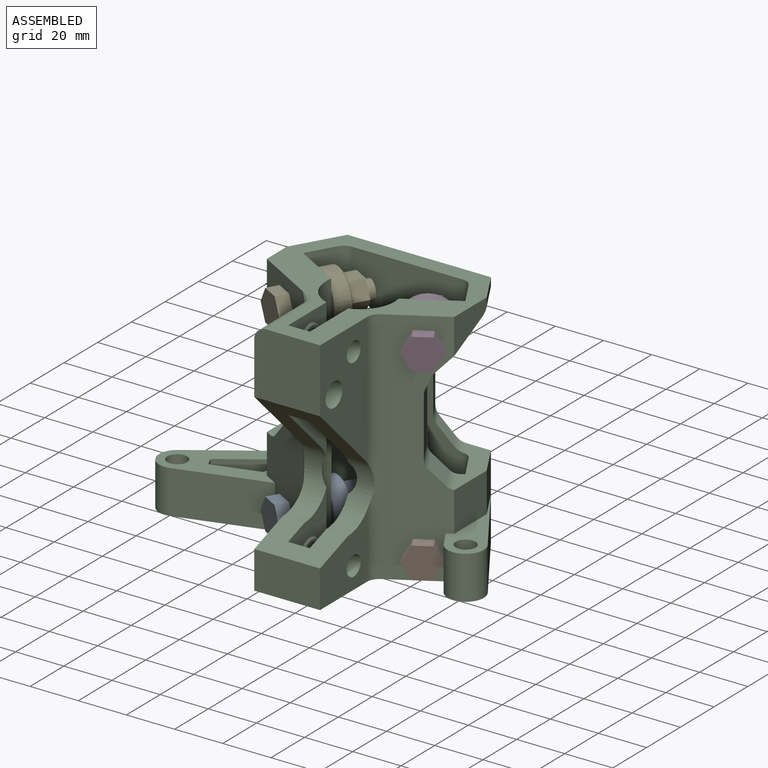
[diagram: assembled view]
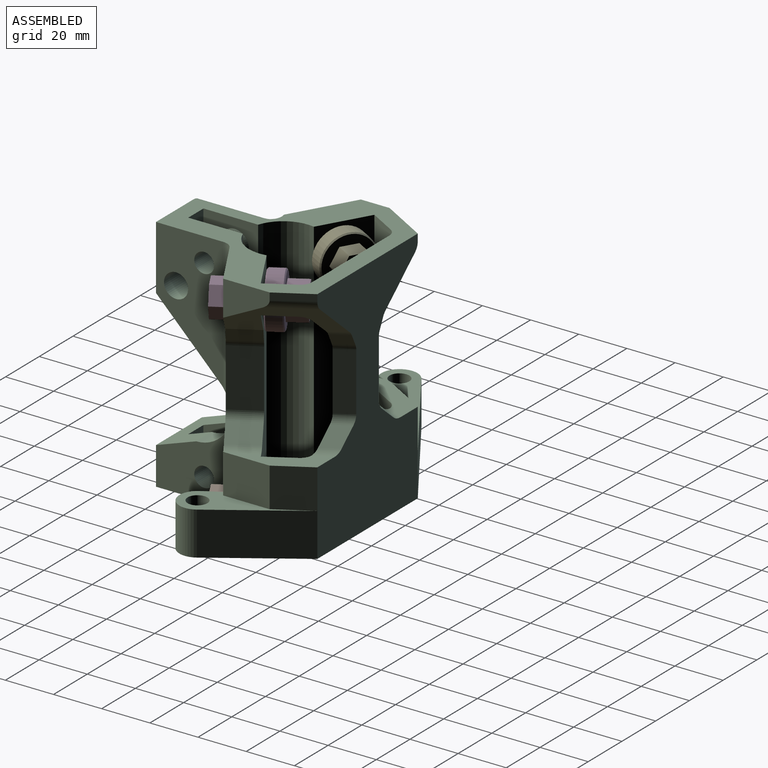
[diagram: assembled view, second angle]
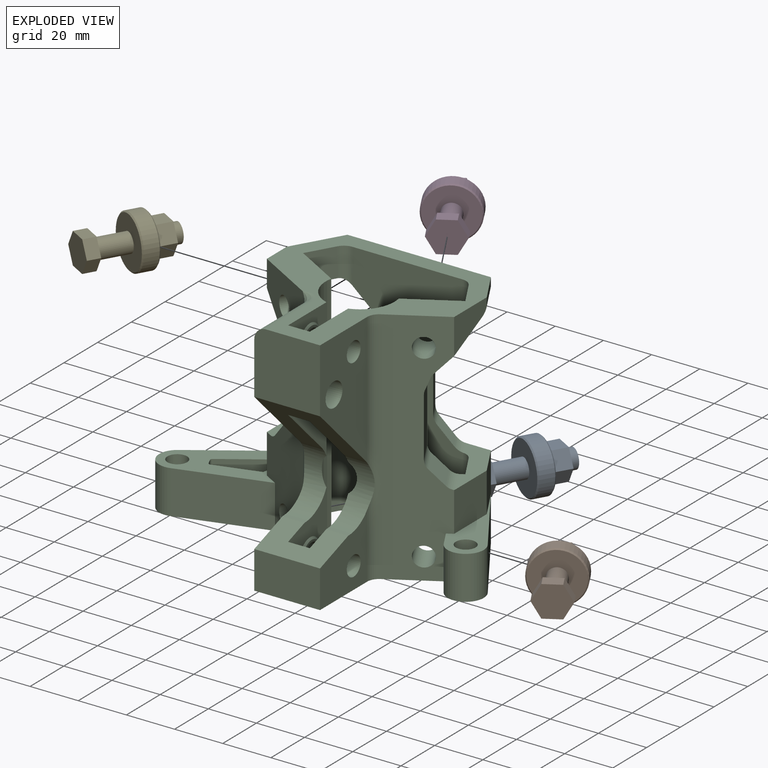
[diagram: exploded view]
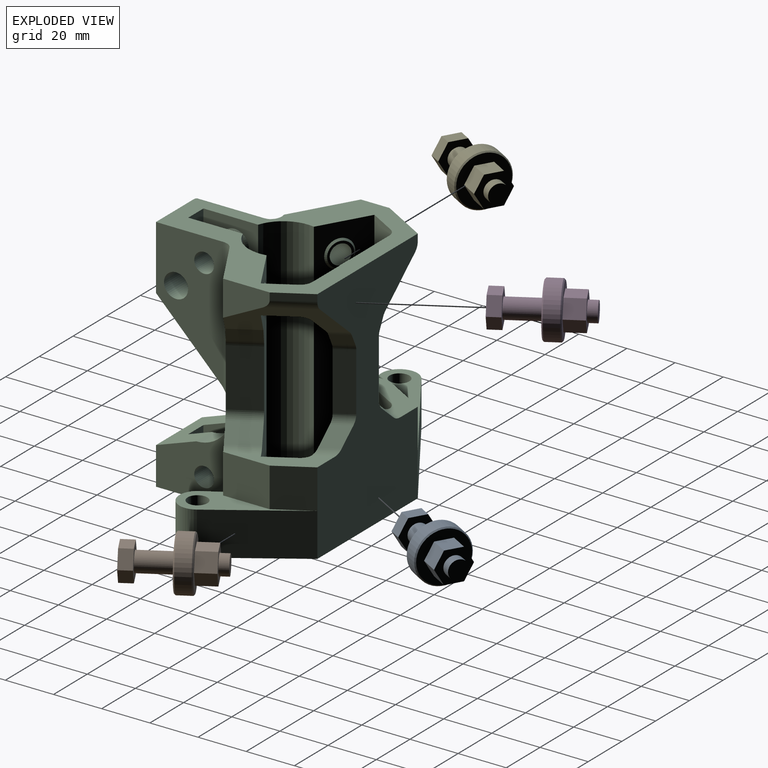
[diagram: exploded view, second angle]
ASSEMBLY  parts=5 mates=2
PART A: 23 faces, bbox 22x22x38 mm
  f0: cylinder r=4mm len=13.85mm, axis (0,0,-1), area 348.1mm2, adj f9,f21
  f1: plane 8x7.51mm, normal (0,1,0), area 60mm2, adj f2,f6,f7,f10
  f2: plane 8x6.5mm, normal (-0.87,0.5,0), area 60mm2, adj f1,f3,f7,f10
  f3: plane 8x6.5mm, normal (-0.87,-0.5,0), area 60mm2, adj f2,f4,f7,f10
  f4: plane 8x7.51mm, normal (0,-1,0), area 60mm2, adj f3,f5,f7,f10
  f5: plane 8x6.5mm, normal (0.87,-0.5,0), area 60mm2, adj f4,f6,f7,f10
  f6: plane 8x6.5mm, normal (0.87,0.5,0), area 60mm2, adj f1,f5,f7,f10
  f7: plane 15.01x13mm, normal (0,0,-1), area 96.1mm2, adj f1,f2,f3,f4,f5,f6,f11
  f8: cylinder r=11mm len=22mm, axis (0,0,-1), area 414.7mm2, adj f13,f14
  f9: plane 21x21mm, normal (0,0,1), area 296.1mm2, adj f0,f13
  f10: plane 21x21mm, normal (0,0,-1), area 200mm2, adj f1,f2,f3,f4,f5,f6,f14
  f11: cylinder r=4mm len=8mm, axis (0,0,-1), area 94.2mm2, adj f7,f12
  f12: plane 8x8mm, normal (0,0,-1), area 50.3mm2, adj f11
  f13: cone r=10.5mm half-angle=45deg, axis (0,0,-1), area 47.8mm2, adj f8,f9
  f14: cone r=11mm half-angle=45deg, axis (0,0,1), area 47.8mm2, adj f8,f10
  f15: plane 7.51x5.4mm, normal (0,1,0), area 40.5mm2, adj f16,f20,f21,f22
  f16: plane 6.5x5.4mm, normal (-0.87,0.5,0), area 40.5mm2, adj f15,f17,f21,f22
  f17: plane 6.5x5.4mm, normal (-0.87,-0.5,0), area 40.5mm2, adj f16,f18,f21,f22
  f18: plane 7.51x5.4mm, normal (0,-1,0), area 40.5mm2, adj f17,f19,f21,f22
  f19: plane 6.5x5.4mm, normal (0.87,-0.5,0), area 40.5mm2, adj f18,f20,f21,f22
  f20: plane 6.5x5.4mm, normal (0.87,0.5,0), area 40.5mm2, adj f15,f19,f21,f22
  f21: plane 15.01x13mm, normal (0,0,-1), area 96.1mm2, adj f0,f15,f16,f17,f18,f19,f20
  f22: plane 15.01x13mm, normal (0,0,1), area 146.4mm2, adj f15,f16,f17,f18,f19,f20
PART B: same geometry as A
PART C: 129 faces, bbox 140.1x85.4x104.7 mm
  f0: cylinder r=5mm len=34.39mm, axis (0,0,-1), area 179.9mm2, adj f1,f11,f67,f104,f121
  f1: plane 34.36x11.25mm, normal (-0.87,-0.5,0), area 446.2mm2, adj f0,f41,f67,f104
  f2: plane 17.86x2.46mm, normal (0.5,-0.87,0), area 48.1mm2, adj f3,f31,f38,f112,f122
  f3: plane 19.33x16.41mm, normal (1,0,0), area 316.2mm2, adj f2,f4,f38,f104,f122
  f4: plane 16.36x14.1mm, normal (0.87,0.5,0), area 266.3mm2, adj f3,f14,f38,f104
  f5: plane 99.36x19.32mm, normal (-0.5,-0.87,0), area 1828.1mm2, adj f15,f16,f27,f54,f55,f67,f71,f72
  f6: plane 99.36x19.68mm, normal (0.5,0.87,0), area 1485.1mm2, adj f7,f8,f61,f67,f71,f84,f88,f97
  f7: plane 12x11.25mm, normal (0.87,-0.5,0), area 155.8mm2, adj f6,f9,f71,f99
  f8: plane 34.36x11.25mm, normal (0.87,-0.5,0), area 446.2mm2, adj f6,f10,f67,f100
  f9: cylinder r=5mm len=14.5mm, axis (0,0,-1), area 69.4mm2, adj f7,f11,f71,f99
  f10: cylinder r=5mm len=34.39mm, axis (0,0,-1), area 179.9mm2, adj f8,f11,f67,f100,f124
  f11: plane 99.76x46.13mm, normal (0,-1,0), area 3553.6mm2, adj f0,f9,f10,f39,f67,f71,f98,f99
  f12: plane 2.94x2.26mm, normal (-0.87,0.5,0), area 7.7mm2, adj f17,f19,f71,f128
  f13: plane 34.36x2.26mm, normal (-0.87,0.5,0), area 89.7mm2, adj f18,f20,f46,f47,f67,f100
  f14: plane 99.76x59.99mm, normal (0,1,0), area 3717mm2, adj f4,f17,f18,f52,f64,f67,f70,f71
  f15: plane 17.5x5.68mm, normal (-0.5,-0.87,0), area 93.2mm2, adj f5,f19,f71,f99
  f16: plane 17.86x5.68mm, normal (-0.5,-0.87,0), area 108.9mm2, adj f5,f20,f66,f100,f109,f123
  f17: plane 17.41x10.05mm, normal (-0.87,0.5,0), area 58.9mm2, adj f12,f14,f71,f128
  f18: plane 17.41x16.36mm, normal (-0.87,0.5,0), area 328.9mm2, adj f13,f14,f66,f100
  f19: plane 13.1x12.16mm, normal (-1,0,0), area 93.7mm2, adj f12,f15,f71,f99,f128
  f20: plane 16.36x11.89mm, normal (-1,0,0), area 194.5mm2, adj f13,f16,f66,f100
  f21: plane 27.3x26.63mm, normal (0,-1,0), area 721.7mm2, adj f36,f57,f71,f92,f96
  f22: plane 27.97x27mm, normal (-1,0,0), area 518.2mm2, adj f55,f56,f67,f75,f91,f94
  f23: plane 18.09x9mm, normal (0,1,0), area 162.8mm2, adj f24,f25,f67,f91
  f24: plane 29.9x22.73mm, normal (-1,0,0), area 395.3mm2, adj f23,f42,f67,f86,f91,f93
  f25: plane 29.9x22.73mm, normal (1,0,0), area 395.3mm2, adj f23,f61,f67,f87,f91,f94
  f26: plane 27.97x27mm, normal (1,0,0), area 518.2mm2, adj f56,f58,f67,f74,f91,f93
  f27: cylinder r=4.1mm len=16.09mm, axis (-0.5,-0.87,0), area 356.8mm2, adj f5,f28
  f28: plane 10.2x8.83mm, normal (0.5,0.87,0), area 28.9mm2, adj f27,f84
  f29: cylinder r=4.1mm len=16.09mm, axis (0.5,-0.87,0), area 356.8mm2, adj f30,f31
  f30: plane 10.2x8.83mm, normal (-0.5,0.87,0), area 28.9mm2, adj f29,f81
  f31: plane 99.36x19.32mm, normal (0.5,-0.87,0), area 1828.1mm2, adj f2,f29,f58,f59,f67,f68,f71,f76
  f32: cylinder r=4.1mm len=9.9mm, axis (-1,0,0), area 255mm2, adj f33,f57
  f33: plane 10.2x10.2mm, normal (-1,0,0), area 28.9mm2, adj f32,f82
  f34: cylinder r=4.1mm len=9.9mm, axis (-1,0,0), area 255mm2, adj f35,f36
  f35: plane 10.2x10.2mm, normal (1,0,0), area 28.9mm2, adj f34,f83
  f36: plane 49.76x27.97mm, normal (-1,0,0), area 865mm2, adj f21,f34,f55,f73,f92,f94,f96
  f37: plane 9x7.15mm, normal (0,1,0), area 64.3mm2, adj f43,f45,f73,f92
  f38: plane 45.81x23.85mm, normal (0,0,1), area 272.6mm2, adj f2,f3,f4,f59,f60,f62,f64
  f39: cylinder r=5mm len=14.5mm, axis (0,0,-1), area 69.4mm2, adj f11,f40,f71,f103
  f40: plane 12x11.25mm, normal (-0.87,-0.5,0), area 155.8mm2, adj f39,f41,f71,f103
  f41: plane 99.36x19.68mm, normal (-0.5,0.87,0), area 1485.1mm2, adj f1,f40,f42,f67,f71,f81,f85,f102
  f42: cylinder r=14.3mm len=99.36mm, axis (0,0,-1), area 2040.5mm2, adj f24,f41,f43,f67,f71,f93
  f43: plane 57.66x22.73mm, normal (-1,0,0), area 863.8mm2, adj f37,f42,f44,f71,f73,f82,f92,f93
  f44: plane 16.85x9mm, normal (0,1,0), area 151.6mm2, adj f43,f45,f71,f73
  f45: plane 57.66x22.73mm, normal (1,0,0), area 863.8mm2, adj f37,f44,f61,f71,f73,f83,f92,f94
  f46: cylinder r=1mm len=18mm, axis (0,0,-1), area 48.3mm2, adj f13,f63,f66,f67
  f47: plane 18x10.34mm, normal (-0.97,0.25,0), area 192.3mm2, adj f13,f48,f66,f67
  f48: plane 18.06x18mm, normal (-0.28,0.96,0), area 339mm2, adj f47,f49,f66,f67
  f49: cylinder r=1mm len=18mm, axis (0,0,-1), area 27.5mm2, adj f48,f50,f66,f67
  f50: plane 18x2.2mm, normal (0.91,0.42,0), area 43.6mm2, adj f49,f51,f66,f67
  f51: cylinder r=1mm len=18mm, axis (0,0,-1), area 27.5mm2, adj f50,f63,f66,f67
  f52: plane 48x32.08mm, normal (-0.56,0.83,0), area 1039.1mm2, adj f14,f53,f66,f67
  f53: cylinder r=7.5mm len=18mm, axis (0,0,-1), area 383.4mm2, adj f52,f54,f66,f67
  f54: plane 36.02x18mm, normal (0.28,-0.96,0), area 676.2mm2, adj f5,f53,f66,f67
  f55: cylinder r=5mm len=99.36mm, axis (0,0,-1), area 469mm2, adj f5,f22,f36,f67,f94,f95
  f56: plane 27.3x15.62mm, normal (0,-1,0), area 426.5mm2, adj f22,f26,f67,f91
  f57: plane 54.76x27.97mm, normal (1,0,0), area 1004.9mm2, adj f21,f32,f58,f71,f73,f92,f93
  f58: cylinder r=5mm len=99.36mm, axis (0,0,-1), area 482.1mm2, adj f26,f31,f57,f67,f71,f93
  f59: plane 18x7.22mm, normal (-0.87,-0.5,0), area 150.1mm2, adj f31,f38,f60,f67
  f60: cylinder r=7.5mm len=18mm, axis (0,0,-1), area 432.3mm2, adj f38,f59,f64,f67
  f61: cylinder r=14.3mm len=99.36mm, axis (0,0,-1), area 2040.5mm2, adj f6,f25,f45,f67,f71,f94
  f62: cylinder r=4.1mm len=17mm, axis (0,0,-1), area 437.9mm2, adj f38,f89
  f63: plane 22.59x18mm, normal (0.56,-0.83,0), area 488.9mm2, adj f46,f51,f66,f67
  f64: plane 34.18x22.6mm, normal (0.83,0.55,0), area 737.5mm2, adj f14,f38,f60,f67
  f65: cylinder r=4.1mm len=17mm, axis (0,0,-1), area 437.9mm2, adj f66,f90
  f66: plane 51.33x45.81mm, normal (0,0,1), area 669.9mm2, adj f16,f18,f20,f46,f47,f48,f49,f50
  f67: plane 134.76x78.3mm, normal (0,0,-1), area 2964.2mm2, adj f0,f1,f5,f6,f8,f10,f11,f13
  f68: plane 17.5x2.46mm, normal (0.5,-0.87,0), area 45.6mm2, adj f31,f69,f71,f103
  f69: plane 20.54x15.88mm, normal (1,0,0), area 188.9mm2, adj f68,f70,f71,f103,f127
  f70: plane 14.1x8.14mm, normal (0.87,0.5,0), area 47.7mm2, adj f14,f69,f71,f127
  f71: plane 84.38x83.6mm, normal (0,0,1), area 1916.9mm2, adj f5,f6,f7,f9,f11,f12,f14,f15
  f72: cylinder r=4.1mm len=16.09mm, axis (-0.5,-0.87,0), area 356.8mm2, adj f5,f77
  f73: cylinder r=5mm len=27.3mm, axis (-1,0,0), area 692mm2, adj f36,f37,f43,f44,f45,f57
  f74: cylinder r=4.1mm len=9.9mm, axis (-1,0,0), area 255mm2, adj f26,f79
  f75: cylinder r=4.1mm len=9.9mm, axis (-1,0,0), area 255mm2, adj f22,f80
  f76: cylinder r=4.1mm len=16.09mm, axis (0.5,-0.87,0), area 356.8mm2, adj f31,f78
  f77: plane 10.2x8.83mm, normal (0.5,0.87,0), area 28.9mm2, adj f72,f88
  f78: plane 10.2x8.83mm, normal (-0.5,0.87,0), area 28.9mm2, adj f76,f85
  f79: plane 10.2x10.2mm, normal (-1,0,0), area 28.9mm2, adj f74,f86
  f80: plane 10.2x10.2mm, normal (1,0,0), area 28.9mm2, adj f75,f87
  f81: cone r=6.1mm half-angle=45deg, axis (0.5,-0.87,0), area 36.5mm2, adj f30,f41
  f82: cone r=5.1mm half-angle=45deg, axis (1,0,0), area 36.5mm2, adj f33,f43
  f83: cone r=6.1mm half-angle=45deg, axis (-1,0,0), area 36.5mm2, adj f35,f45
  f84: cone r=6.1mm half-angle=45deg, axis (-0.5,-0.87,0), area 36.5mm2, adj f6,f28
  f85: cone r=6.1mm half-angle=45deg, axis (0.5,-0.87,0), area 36.5mm2, adj f41,f78
  f86: cone r=5.1mm half-angle=45deg, axis (1,0,0), area 36.5mm2, adj f24,f79
  f87: cone r=6.1mm half-angle=45deg, axis (-1,0,0), area 36.5mm2, adj f25,f80
  f88: cone r=6.1mm half-angle=45deg, axis (-0.5,-0.87,0), area 36.5mm2, adj f6,f77
  f89: cone r=5.1mm half-angle=45deg, axis (0,0,-1), area 40.9mm2, adj f62,f67
  f90: cone r=5.1mm half-angle=45deg, axis (0,0,-1), area 40.9mm2, adj f65,f67
  f91: plane 27.3x16.7mm, normal (0,-0.33,0.94), area 390.8mm2, adj f22,f23,f24,f25,f26,f56,f93,f94
  f92: plane 27.3x26.81mm, normal (0,-0.71,-0.71), area 783mm2, adj f21,f36,f37,f43,f45,f57,f93,f94
  f93: cylinder r=14.3mm len=24.41mm, axis (-1,0,0), area 294.4mm2, adj f24,f26,f42,f43,f57,f58,f91,f92
  f94: cylinder r=14.3mm len=24.41mm, axis (-1,0,0), area 294.4mm2, adj f22,f25,f36,f45,f55,f61,f91,f92
  f95: bspline ~7.5x5mm, area 20.2mm2, adj f55,f71,f96
  f96: cylinder r=5mm len=27.97mm, axis (0,-1,0), area 219.7mm2, adj f21,f36,f71,f95
  f97: plane 24.21x11.35mm, normal (-0.87,0.5,0), area 317.1mm2, adj f5,f6,f115,f116
  f98: plane 24.21x7mm, normal (-0.87,0.5,0), area 195.7mm2, adj f11,f14,f113,f114
  f99: plane 38.44x31.76mm, normal (-0.61,0.35,-0.71), area 557.3mm2, adj f5,f6,f7,f9,f11,f14,f15,f19
  f100: plane 33.06x21.67mm, normal (0,0,1), area 256.8mm2, adj f6,f8,f10,f13,f14,f16,f18,f20
  f101: plane 24.21x7mm, normal (0.87,0.5,0), area 195.7mm2, adj f11,f14,f119,f120
  f102: plane 24.21x11.35mm, normal (0.87,0.5,0), area 317.1mm2, adj f31,f41,f117,f118
  f103: plane 38.44x28.54mm, normal (0.61,0.35,-0.71), area 499.6mm2, adj f11,f14,f31,f39,f40,f41,f68,f69
  f104: plane 31.96x18.45mm, normal (0,0,1), area 207mm2, adj f0,f1,f3,f4,f14,f41,f121,f122
  f105: plane 7x6.21mm, normal (0.8,0.46,-0.38), area 39.6mm2, adj f11,f14,f119,f126
  f106: plane 12.47x8.5mm, normal (0.8,0.46,-0.38), area 77.2mm2, adj f31,f41,f103,f117
  f107: plane 12.47x8.5mm, normal (-0.8,0.46,-0.38), area 77.2mm2, adj f5,f6,f99,f115
  f108: plane 7x6.21mm, normal (-0.8,0.46,-0.38), area 39.6mm2, adj f11,f14,f113,f125
  f109: plane 14.38x11.81mm, normal (-0.61,0.35,0.71), area 112.5mm2, adj f5,f6,f16,f116,f123
  f110: plane 11.05x7mm, normal (-0.61,0.35,0.71), area 69.4mm2, adj f11,f14,f114,f124
  f111: plane 11.05x7mm, normal (0.61,0.35,0.71), area 69.4mm2, adj f11,f14,f120,f121
  f112: plane 14.38x11.81mm, normal (0.61,0.35,0.71), area 112.5mm2, adj f2,f31,f41,f118,f122
  f113: cylinder r=5mm len=7.38mm, axis (-0.5,-0.87,0), area 15.9mm2, adj f11,f14,f98,f108
  f114: cylinder r=5mm len=8.46mm, axis (0.5,0.87,0), area 31.7mm2, adj f11,f14,f98,f110
  f115: cylinder r=5mm len=11.54mm, axis (-0.5,-0.87,0), area 25.7mm2, adj f5,f6,f97,f107
  f116: cylinder r=5mm len=12.08mm, axis (0.5,0.87,0), area 51.4mm2, adj f5,f6,f97,f109
  f117: cylinder r=5mm len=11.54mm, axis (0.5,-0.87,0), area 25.7mm2, adj f31,f41,f102,f106
  f118: cylinder r=5mm len=12.08mm, axis (0.5,-0.87,0), area 51.4mm2, adj f31,f41,f102,f112
  f119: cylinder r=5mm len=7.38mm, axis (0.5,-0.87,0), area 15.9mm2, adj f11,f14,f101,f105
  f120: cylinder r=5mm len=8.46mm, axis (0.5,-0.87,0), area 31.7mm2, adj f11,f14,f101,f111
  f121: cylinder r=5mm len=10.58mm, axis (-0.5,0.87,0), area 31.7mm2, adj f0,f11,f14,f104,f111
  f122: cylinder r=5mm len=13.11mm, axis (-0.5,0.87,0), area 51mm2, adj f2,f3,f41,f104,f112
  f123: cylinder r=5mm len=13.11mm, axis (0.5,0.87,0), area 51.4mm2, adj f6,f16,f100,f109
  f124: cylinder r=5mm len=10.58mm, axis (0.5,0.87,0), area 31.7mm2, adj f10,f11,f14,f100,f110
  f125: cylinder r=5mm len=8.08mm, axis (-0.5,-0.87,0), area 15.9mm2, adj f11,f14,f99,f108
  f126: cylinder r=5mm len=8.08mm, axis (0.5,-0.87,0), area 15.9mm2, adj f11,f14,f103,f105
  f127: cylinder r=5mm len=17.76mm, axis (-0.5,0.87,0), area 70.6mm2, adj f14,f69,f70,f103
  f128: cylinder r=5mm len=23.34mm, axis (-0.5,-0.87,0), area 95.8mm2, adj f12,f14,f17,f19,f99
PART D: same geometry as A
PART E: same geometry as A
PLACE A rot(axis=(0.94,-0.25,-0.25),93.8deg) t=(-34.91,46.45,16.94)mm
PLACE B rot(axis=(0.94,0.25,0.25),93.8deg) t=(-9.55,46.45,16.94)mm
PLACE C t=(-22.23,21.81,7.94)mm
PLACE D rot(axis=(0.94,0.25,0.25),93.8deg) t=(-9.55,46.45,95.3)mm
PLACE E rot(axis=(0.94,-0.25,-0.25),93.8deg) t=(-34.91,46.45,95.3)mm
MATE fastened D.f8 <-> C.f81  axis (0.5,-0.87,0) through (-0.17,30.22,95.3)mm
MATE fastened A.f8 <-> C.f88  axis (-0.5,-0.87,0) through (-44.28,30.22,16.94)mm
